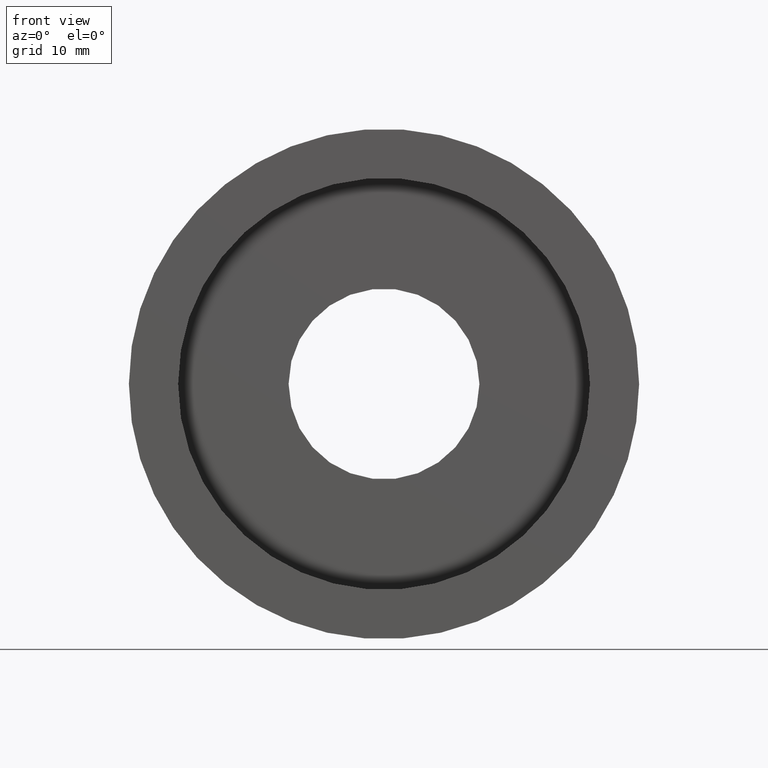
[diagram: clean part render]
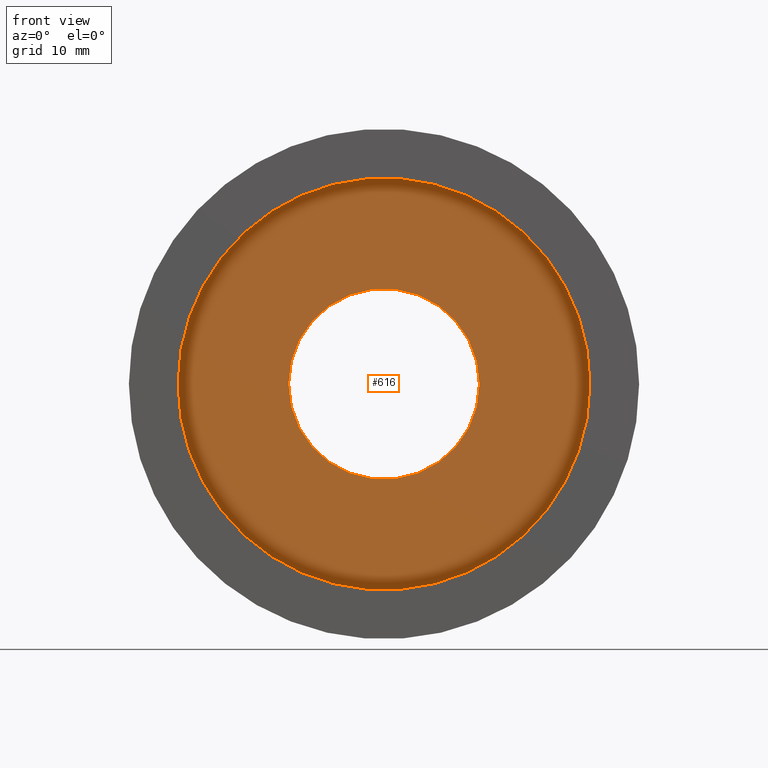
[diagram: same view with one face highlighted and labeled with its STEP entity id]
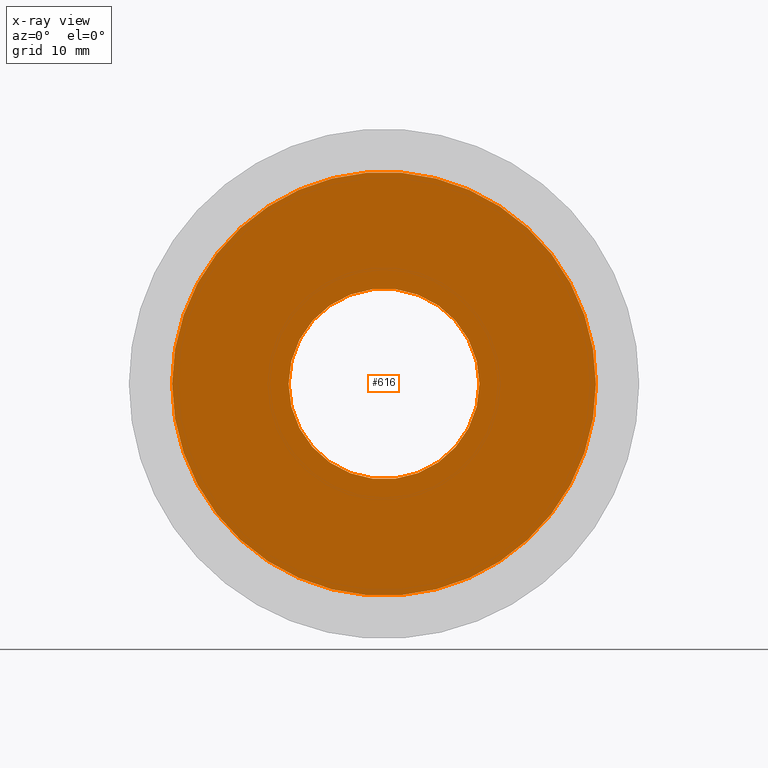
[diagram: x-ray of the same camera — body ghosted, the highlighted face saturated]
A machine part, front view. The second image highlights one B-rep face of the part: STEP entity #616.
The next image is the same camera in x-ray: the body ghosted, the highlighted face saturated — about 0% of this face is hidden behind the body in this view.
In plain terms, the highlighted planar face has unit normal (-0, 1, 0).
Its self-contained STEP definition (entity closure, byte-faithful):
#6 = DIRECTION ( 'NONE',  ( -1.224646799147351000E-016, 1.000000000000000000, 0.0000000000000000000 ) ) ;
#10 = ORIENTED_EDGE ( 'NONE', *, *, #115, .F. ) ;
#11 = EDGE_CURVE ( 'NONE', #504, #350, #315, .T. ) ;
#12 = ORIENTED_EDGE ( 'NONE', *, *, #11, .T. ) ;
#22 = ORIENTED_EDGE ( 'NONE', *, *, #175, .T. ) ;
#62 = AXIS2_PLACEMENT_3D ( 'NONE', #183, #492, #308 ) ;
#67 = CARTESIAN_POINT ( 'NONE',  ( 1.271920398992858000E-015, 6.499999999999997300, 0.0000000000000000000 ) ) ;
#90 = AXIS2_PLACEMENT_3D ( 'NONE', #329, #6, #280 ) ;
#93 = AXIS2_PLACEMENT_3D ( 'NONE', #190, #120, #563 ) ;
#95 = CARTESIAN_POINT ( 'NONE',  ( -21.10000000000000100, 6.499999999999994700, 0.0000000000000000000 ) ) ;
#115 = EDGE_CURVE ( 'NONE', #141, #392, #134, .T. ) ;
#120 = DIRECTION ( 'NONE',  ( -1.224646799147351000E-016, 1.000000000000000000, -0.0000000000000000000 ) ) ;
#121 = CARTESIAN_POINT ( 'NONE',  ( 1.271920398992858000E-015, 6.499999999999997300, 0.0000000000000000000 ) ) ;
#134 = CIRCLE ( 'NONE', #144, 21.10000000000000100 ) ;
#141 = VERTEX_POINT ( 'NONE', #95 ) ;
#144 = AXIS2_PLACEMENT_3D ( 'NONE', #67, #263, #294 ) ;
#162 = CIRCLE ( 'NONE', #62, 9.500000000000000000 ) ;
#175 = EDGE_CURVE ( 'NONE', #350, #504, #162, .T. ) ;
#183 = CARTESIAN_POINT ( 'NONE',  ( 1.271920398992858000E-015, 6.499999999999997300, 0.0000000000000000000 ) ) ;
#190 = CARTESIAN_POINT ( 'NONE',  ( 1.271920398992858000E-015, 6.499999999999997300, 0.0000000000000000000 ) ) ;
#232 = CARTESIAN_POINT ( 'NONE',  ( -9.499999999999998200, 6.499999999999996400, 0.0000000000000000000 ) ) ;
#253 = EDGE_LOOP ( 'NONE', ( #22, #12 ) ) ;
#263 = DIRECTION ( 'NONE',  ( -1.224646799147351000E-016, 1.000000000000000000, -0.0000000000000000000 ) ) ;
#266 = FACE_OUTER_BOUND ( 'NONE', #326, .T. ) ;
#279 = PLANE ( 'NONE',  #90 ) ;
#280 = DIRECTION ( 'NONE',  ( -1.000000000000000000, -1.224646799147351000E-016, 0.0000000000000000000 ) ) ;
#294 = DIRECTION ( 'NONE',  ( -1.000000000000000000, -1.233215741215739600E-016, 0.0000000000000000000 ) ) ;
#308 = DIRECTION ( 'NONE',  ( -1.000000000000000000, -9.130123557772668300E-017, 0.0000000000000000000 ) ) ;
#315 = CIRCLE ( 'NONE', #506, 9.500000000000000000 ) ;
#322 = DIRECTION ( 'NONE',  ( -1.224646799147351000E-016, 1.000000000000000000, -0.0000000000000000000 ) ) ;
#326 = EDGE_LOOP ( 'NONE', ( #10, #547 ) ) ;
#329 = CARTESIAN_POINT ( 'NONE',  ( 9.500000000000001800, 6.499999999999998200, 0.0000000000000000000 ) ) ;
#350 = VERTEX_POINT ( 'NONE', #232 ) ;
#368 = CARTESIAN_POINT ( 'NONE',  ( 9.500000000000001800, 6.499999999999998200, 1.163414459189985700E-015 ) ) ;
#372 = CIRCLE ( 'NONE', #93, 21.10000000000000100 ) ;
#376 = CARTESIAN_POINT ( 'NONE',  ( 21.10000000000000100, 6.500000000000000000, 2.584004746200915400E-015 ) ) ;
#392 = VERTEX_POINT ( 'NONE', #376 ) ;
#399 = EDGE_CURVE ( 'NONE', #392, #141, #372, .T. ) ;
#419 = FACE_BOUND ( 'NONE', #253, .T. ) ;
#425 = DIRECTION ( 'NONE',  ( -1.000000000000000000, -9.130123557772668300E-017, 0.0000000000000000000 ) ) ;
#492 = DIRECTION ( 'NONE',  ( -1.224646799147351000E-016, 1.000000000000000000, -0.0000000000000000000 ) ) ;
#504 = VERTEX_POINT ( 'NONE', #368 ) ;
#506 = AXIS2_PLACEMENT_3D ( 'NONE', #121, #322, #425 ) ;
#547 = ORIENTED_EDGE ( 'NONE', *, *, #399, .F. ) ;
#563 = DIRECTION ( 'NONE',  ( -1.000000000000000000, -1.233215741215739600E-016, 0.0000000000000000000 ) ) ;
#616 = ADVANCED_FACE ( 'NONE', ( #266, #419 ), #279, .F. ) ;